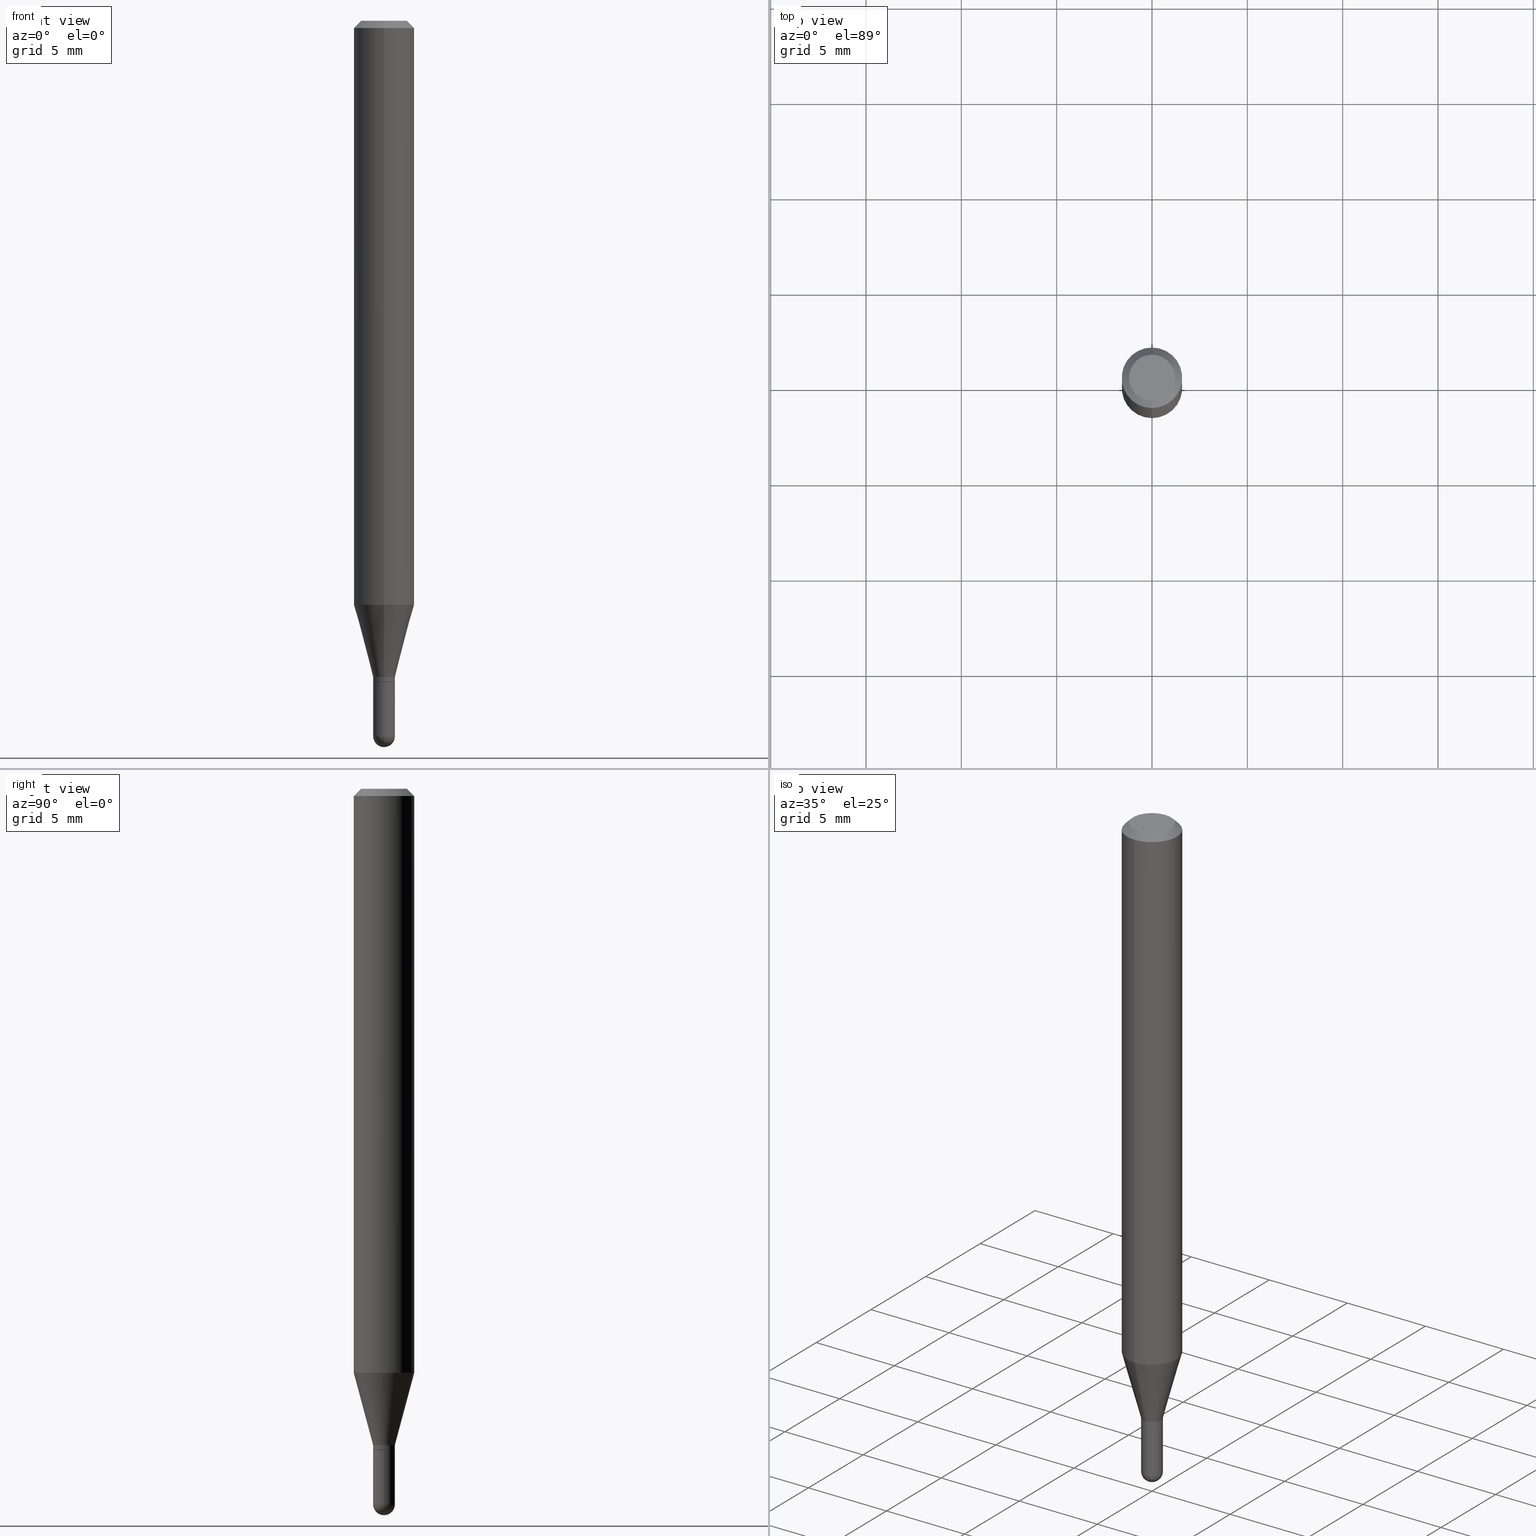
[diagram: canonical four-view strip — front | top / right | iso, engineering-drawing reading convention]
A machine part, canonical four-view strip (front | top / right | iso — engineering-drawing reading convention). The complete STEP part file that produces these views, byte-faithful:
ISO-10303-21;
HEADER;
FILE_DESCRIPTION (( 'STEP AP203' ),
    '1' );
FILE_NAME ('00922.STEP',
    '2024-03-07T18:55:36',
    ( '' ),
    ( '' ),
    'SwSTEP 2.0',
    'SolidWorks 2023',
    '' );
FILE_SCHEMA (( 'CONFIG_CONTROL_DESIGN' ));
ENDSEC;

DATA;
#1 = DATE_TIME_ROLE ( 'creation_date' ) ;
#2 = CARTESIAN_POINT ( 'NONE',  ( 0.000000000000000000, 0.000000000000000000, 0.000000000000000000 ) ) ;
#3 = CALENDAR_DATE ( 2024, 7, 3 ) ;
#4 = CARTESIAN_POINT ( 'NONE',  ( 3.338047731826425136E-29, -4.765896642597731001E-15, -1.364999999999999991 ) ) ;
#5 = AXIS2_PLACEMENT_3D ( 'NONE', #477, #445, #279 ) ;
#6 = DIRECTION ( 'NONE',  ( -6.982962677686265922E-15, -1.000000000000000000, 4.370956789862821150E-15 ) ) ;
#7 = AXIS2_PLACEMENT_3D ( 'NONE', #361, #400, #8 ) ;
#8 = DIRECTION ( 'NONE',  ( -6.982962677686265922E-15, -1.000000000000000000, 3.483106191921935554E-15 ) ) ;
#9 = ORIENTED_EDGE ( 'NONE', *, *, #252, .T. ) ;
#10 = CC_DESIGN_PERSON_AND_ORGANIZATION_ASSIGNMENT ( #150, #271, ( #250 ) ) ;
#11 = DIRECTION ( 'NONE',  ( 6.982962677686265922E-15, 1.000000000000000000, 0.000000000000000000 ) ) ;
#12 = ORIENTED_EDGE ( 'NONE', *, *, #200, .F. ) ;
#13 = CARTESIAN_POINT ( 'NONE',  ( 3.611256036987885434E-29, -5.161419133438828807E-15, -1.477500000000000036 ) ) ;
#14 = CONICAL_SURFACE ( 'NONE', #483, 0.02199999999999999872, 0.7853981633974739252 ) ;
#15 = ORIENTED_EDGE ( 'NONE', *, *, #420, .T. ) ;
#16 = AXIS2_PLACEMENT_3D ( 'NONE', #28, #421, #102 ) ;
#17 = CYLINDRICAL_SURFACE ( 'NONE', #220, 0.02249999999999999917 ) ;
#18 = EDGE_LOOP ( 'NONE', ( #12, #463, #179, #383 ) ) ;
#19 = EDGE_CURVE ( 'NONE', #147, #214, #221, .T. ) ;
#20 = FACE_OUTER_BOUND ( 'NONE', #51, .T. ) ;
#21 = PRODUCT_DEFINITION_SHAPE ( 'NONE', 'NONE',  #415 ) ;
#22 = ORIENTED_EDGE ( 'NONE', *, *, #37, .T. ) ;
#23 = CARTESIAN_POINT ( 'NONE',  ( -1.536251789090644327E-16, -0.02200000000000476574, -1.364999999999999991 ) ) ;
#24 = ORIENTED_EDGE ( 'NONE', *, *, #132, .F. ) ;
#25 = AXIS2_PLACEMENT_3D ( 'NONE', #426, #149, #227 ) ;
#26 = AXIS2_PLACEMENT_3D ( 'NONE', #404, #130, #292 ) ;
#27 = SPHERICAL_SURFACE ( 'NONE', #42, 0.02250000000000005121 ) ;
#28 = CARTESIAN_POINT ( 'NONE',  ( 3.338047731826425136E-29, -4.765896642597731001E-15, -1.364999999999999991 ) ) ;
#29 = VERTEX_POINT ( 'NONE', #438 ) ;
#30 = DIRECTION ( 'NONE',  ( -1.000000000000000000, 6.982962677686265922E-15, -4.876176775795935793E-29 ) ) ;
#31 = EDGE_LOOP ( 'NONE', ( #246, #405, #173, #243 ) ) ;
#32 = ADVANCED_FACE ( 'NONE', ( #313 ), #501, .T. ) ;
#33 = CIRCLE ( 'NONE', #126, 0.02249999999999999917 ) ;
#34 = LOCAL_TIME ( 13, 55, 36.00000000000000000, #39 ) ;
#35 = PERSON_AND_ORGANIZATION_ROLE ( 'classification_officer' ) ;
#36 = DIRECTION ( 'NONE',  ( -2.445468806185136597E-29, 3.491481338843145583E-15, 1.000000000000000000 ) ) ;
#37 = EDGE_CURVE ( 'NONE', #248, #507, #512, .T. ) ;
#38 = CARTESIAN_POINT ( 'NONE',  ( 0.000000000000000000, 0.000000000000000000, 0.000000000000000000 ) ) ;
#39 = COORDINATED_UNIVERSAL_TIME_OFFSET ( 5, 0, .BEHIND. ) ;
#40 = DIRECTION ( 'NONE',  ( 1.000000000000000000, -6.982962677686269077E-15, 0.000000000000000000 ) ) ;
#41 = CONICAL_SURFACE ( 'NONE', #331, 0.02199999999999999872, 0.7853981633974739252 ) ;
#42 = AXIS2_PLACEMENT_3D ( 'NONE', #346, #304, #458 ) ;
#43 = CYLINDRICAL_SURFACE ( 'NONE', #136, 0.06250000000000000000 ) ;
#44 = ADVANCED_FACE ( 'NONE', ( #116 ), #14, .T. ) ;
#45 = CARTESIAN_POINT ( 'NONE',  ( 0.02249999999999999917, -1.571166602479409911E-16, 1.097139774554085483E-30 ) ) ;
#46 = CARTESIAN_POINT ( 'NONE',  ( 4.440892098500625669E-16, 0.06250000000000000000, -2.182187107416543441E-16 ) ) ;
#47 = EDGE_CURVE ( 'NONE', #57, #93, #117, .T. ) ;
#48 = AXIS2_PLACEMENT_3D ( 'NONE', #38, #237, #229 ) ;
#49 = FACE_OUTER_BOUND ( 'NONE', #31, .T. ) ;
#50 = CC_DESIGN_APPROVAL ( #139, ( #415 ) ) ;
#51 = EDGE_LOOP ( 'NONE', ( #176, #141, #497, #125 ) ) ;
#52 = CC_DESIGN_PERSON_AND_ORGANIZATION_ASSIGNMENT ( #68, #108, ( #415 ) ) ;
#53 = CARTESIAN_POINT ( 'NONE',  ( 3.338064920442711836E-29, -4.765872027520893280E-15, -1.364999999999999991 ) ) ;
#54 = VERTEX_POINT ( 'NONE', #355 ) ;
#55 = EDGE_CURVE ( 'NONE', #57, #208, #267, .T. ) ;
#56 = CARTESIAN_POINT ( 'NONE',  ( 2.166542890100385746E-46, -3.093280958065800308E-32, -8.859463023223195379E-18 ) ) ;
#57 = VERTEX_POINT ( 'NONE', #154 ) ;
#58 = DIRECTION ( 'NONE',  ( -6.982962677686265133E-15, -1.000000000000000000, 0.000000000000000000 ) ) ;
#59 = ORIENTED_EDGE ( 'NONE', *, *, #19, .T. ) ;
#60 = AXIS2_PLACEMENT_3D ( 'NONE', #211, #282, #207 ) ;
#61 = CARTESIAN_POINT ( 'NONE',  ( -1.571166602479072427E-16, -0.02250000000000464823, -1.355000000000000204 ) ) ;
#62 = DIRECTION ( 'NONE',  ( 6.982962677686265922E-15, 1.000000000000000000, -3.491499371866469505E-15 ) ) ;
#63 = DIRECTION ( 'NONE',  ( -2.445456213792252412E-29, 3.491499371866469505E-15, 1.000000000000000000 ) ) ;
#64 = APPROVAL_PERSON_ORGANIZATION ( #198, #139, #425 ) ;
#65 = CARTESIAN_POINT ( 'NONE',  ( 1.571166602479743698E-16, 0.02249999999999523215, -1.364999999999999991 ) ) ;
#66 = DIMENSIONAL_EXPONENTS ( 1.000000000000000000, 0.000000000000000000, 0.000000000000000000, 0.000000000000000000, 0.000000000000000000, 0.000000000000000000, 0.000000000000000000 ) ;
#67 = LINE ( 'NONE', #215, #127 ) ;
#68 = PERSON_AND_ORGANIZATION ( #99, #204 ) ;
#69 = ADVANCED_FACE ( 'NONE', ( #78 ), #360, .T. ) ;
#70 = ORIENTED_EDGE ( 'NONE', *, *, #283, .T. ) ;
#71 = CIRCLE ( 'NONE', #285, 0.02249999999999999917 ) ;
#72 = CC_DESIGN_SECURITY_CLASSIFICATION ( #161, ( #250 ) ) ;
#73 = DIRECTION ( 'NONE',  ( -2.445456213792252692E-29, 3.491499371866469900E-15, 1.000000000000000000 ) ) ;
#74 = ORIENTED_EDGE ( 'NONE', *, *, #228, .F. ) ;
#75 = APPROVAL_STATUS ( 'not_yet_approved' ) ;
#76 = DIRECTION ( 'NONE',  ( 2.445456213792252692E-29, -3.491499371866469900E-15, -1.000000000000000000 ) ) ;
#77 =( NAMED_UNIT ( * ) SI_UNIT ( $, .STERADIAN. ) SOLID_ANGLE_UNIT ( ) );
#78 = FACE_OUTER_BOUND ( 'NONE', #240, .T. ) ;
#79 = CIRCLE ( 'NONE', #5, 0.02249999999999992284 ) ;
#80 = ADVANCED_FACE ( 'NONE', ( #236 ), #354, .T. ) ;
#81 = APPROVAL_PERSON_ORGANIZATION ( #351, #190, #153 ) ;
#82 = DIRECTION ( 'NONE',  ( -6.982962677686265922E-15, -1.000000000000000000, 0.000000000000000000 ) ) ;
#83 = CYLINDRICAL_SURFACE ( 'NONE', #465, 0.06250000000000000000 ) ;
#84 = ORIENTED_EDGE ( 'NONE', *, *, #19, .F. ) ;
#85 = DIRECTION ( 'NONE',  ( -2.445456213792252692E-29, 3.491499371866469900E-15, 1.000000000000000000 ) ) ;
#86 = ADVANCED_FACE ( 'NONE', ( #272 ), #371, .T. ) ;
#87 = VERTEX_POINT ( 'NONE', #310 ) ;
#88 = CARTESIAN_POINT ( 'NONE',  ( 3.313593169688502926E-29, -4.730981648879067221E-15, -1.355000000000000204 ) ) ;
#89 = EDGE_LOOP ( 'NONE', ( #166, #347, #275, #134 ) ) ;
#90 = FACE_OUTER_BOUND ( 'NONE', #428, .T. ) ;
#91 = ORIENTED_EDGE ( 'NONE', *, *, #307, .T. ) ;
#92 = DIRECTION ( 'NONE',  ( 1.000000000000000000, -6.982962677686269077E-15, 0.000000000000000000 ) ) ;
#93 = VERTEX_POINT ( 'NONE', #109 ) ;
#94 = DIRECTION ( 'NONE',  ( -2.445468806185136877E-29, 3.491481338843145188E-15, 1.000000000000000000 ) ) ;
#95 = AXIS2_PLACEMENT_3D ( 'NONE', #350, #429, #358 ) ;
#96 = VERTEX_POINT ( 'NONE', #199 ) ;
#97 = AXIS2_PLACEMENT_3D ( 'NONE', #447, #245, #406 ) ;
#98 = LINE ( 'NONE', #261, #234 ) ;
#99 = PERSON ( 'UNSPECIFIED', 'UNSPECIFIED', 'UNSPECIFIED', ('UNSPECIFIED'), ('UNSPECIFIED'), ('UNSPECIFIED') ) ;
#100 = DIRECTION ( 'NONE',  ( -2.445468806185136597E-29, 3.491481338843145583E-15, 1.000000000000000000 ) ) ;
#101 = CC_DESIGN_PERSON_AND_ORGANIZATION_ASSIGNMENT ( #224, #112, ( #250 ) ) ;
#102 = DIRECTION ( 'NONE',  ( -6.982962677686265922E-15, -1.000000000000000000, 3.491499371866469505E-15 ) ) ;
#103 = AXIS2_PLACEMENT_3D ( 'NONE', #88, #289, #58 ) ;
#104 = EDGE_CURVE ( 'NONE', #507, #450, #257, .T. ) ;
#105 = CARTESIAN_POINT ( 'NONE',  ( 3.613180161138538918E-29, -5.158663678140747361E-15, -1.477500000000000036 ) ) ;
#106 = EDGE_CURVE ( 'NONE', #147, #208, #71, .T. ) ;
#107 = ORIENTED_EDGE ( 'NONE', *, *, #427, .T. ) ;
#108 = PERSON_AND_ORGANIZATION_ROLE ( 'creator' ) ;
#109 = CARTESIAN_POINT ( 'NONE',  ( -1.598721155459865688E-16, -0.02250000000000518599, -1.477500000000000036 ) ) ;
#110 = AXIS2_PLACEMENT_3D ( 'NONE', #180, #416, #62 ) ;
#111 = CARTESIAN_POINT ( 'NONE',  ( 4.364351673553919652E-16, 0.06249999999999995143, -0.01500000000000022669 ) ) ;
#112 = PERSON_AND_ORGANIZATION_ROLE ( 'creator' ) ;
#113 = DIRECTION ( 'NONE',  ( -2.445456213792252692E-29, 3.491499371866469900E-15, 1.000000000000000000 ) ) ;
#114 = ADVANCED_FACE ( 'NONE', ( #232 ), #83, .T. ) ;
#115 = DATE_TIME_ROLE ( 'classification_date' ) ;
#116 = FACE_OUTER_BOUND ( 'NONE', #455, .T. ) ;
#117 = CIRCLE ( 'NONE', #212, 0.02250000000000005121 ) ;
#118 = EDGE_CURVE ( 'NONE', #208, #29, #33, .T. ) ;
#119 = AXIS2_PLACEMENT_3D ( 'NONE', #13, #242, #11 ) ;
#120 = CARTESIAN_POINT ( 'NONE',  ( 3.313593169688502926E-29, -4.730981648879067221E-15, -1.355000000000000204 ) ) ;
#121 = ADVANCED_FACE ( 'NONE', ( #187 ), #43, .T. ) ;
#122 = DIRECTION ( 'NONE',  ( -6.982962677686265922E-15, -1.000000000000000000, 0.000000000000000000 ) ) ;
#123 = ORIENTED_EDGE ( 'NONE', *, *, #303, .T. ) ;
#124 = DIRECTION ( 'NONE',  ( -2.445456213792252692E-29, 3.491499371866469900E-15, 1.000000000000000000 ) ) ;
#125 = ORIENTED_EDGE ( 'NONE', *, *, #319, .F. ) ;
#126 = AXIS2_PLACEMENT_3D ( 'NONE', #391, #394, #40 ) ;
#127 = VECTOR ( 'NONE', #181, 39.37007874015748143 ) ;
#128 = DIRECTION ( 'NONE',  ( -2.445456213792252692E-29, 3.491499371866469900E-15, 1.000000000000000000 ) ) ;
#129 = EDGE_LOOP ( 'NONE', ( #123, #374, #263, #301 ) ) ;
#130 = DIRECTION ( 'NONE',  ( -2.445456213792252692E-29, 3.491499371866469900E-15, 1.000000000000000000 ) ) ;
#131 = EDGE_LOOP ( 'NONE', ( #485, #70 ) ) ;
#132 = EDGE_CURVE ( 'NONE', #376, #214, #241, .T. ) ;
#133 = CARTESIAN_POINT ( 'NONE',  ( 1.571166602479772787E-16, 0.02249999999999486439, -1.477500000000000036 ) ) ;
#134 = ORIENTED_EDGE ( 'NONE', *, *, #37, .F. ) ;
#135 = DIRECTION ( 'NONE',  ( -6.982962677686265922E-15, -1.000000000000000000, 0.000000000000000000 ) ) ;
#136 = AXIS2_PLACEMENT_3D ( 'NONE', #2, #504, #318 ) ;
#137 = CIRCLE ( 'NONE', #486, 0.02249999999999999917 ) ;
#138 = CARTESIAN_POINT ( 'NONE',  ( 3.338047731826425136E-29, -4.765896642597731001E-15, -1.364999999999999991 ) ) ;
#139 = APPROVAL ( #359, 'UNSPECIFIED' ) ;
#140 = CARTESIAN_POINT ( 'NONE',  ( -0.02249999999999999917, -4.802395737284797637E-15, -1.364999999999999991 ) ) ;
#141 = ORIENTED_EDGE ( 'NONE', *, *, #55, .T. ) ;
#142 = DIRECTION ( 'NONE',  ( -6.982962677686265922E-15, -1.000000000000000000, 0.000000000000000000 ) ) ;
#143 = AXIS2_PLACEMENT_3D ( 'NONE', #158, #162, #247 ) ;
#144 = CIRCLE ( 'NONE', #26, 0.02249999999999992284 ) ;
#145 = PRODUCT_RELATED_PRODUCT_CATEGORY ( 'detail', '', ( #298 ) ) ;
#146 = CARTESIAN_POINT ( 'NONE',  ( 1.598721155460219689E-16, 0.02249999999999992284, -7.855873586699530453E-17 ) ) ;
#147 = VERTEX_POINT ( 'NONE', #196 ) ;
#148 = PERSON_AND_ORGANIZATION_ROLE ( 'design_owner' ) ;
#149 = DIRECTION ( 'NONE',  ( -2.445468806185136597E-29, 3.491481338843145583E-15, 1.000000000000000000 ) ) ;
#150 = PERSON_AND_ORGANIZATION ( #99, #204 ) ;
#151 = DIRECTION ( 'NONE',  ( -6.982962677686265133E-15, -1.000000000000000000, 0.000000000000000000 ) ) ;
#152 = CIRCLE ( 'NONE', #167, 0.04749999999999999362 ) ;
#153 = APPROVAL_ROLE ( '' ) ;
#154 = CARTESIAN_POINT ( 'NONE',  ( 3.667241147202378433E-29, -5.238599735913759294E-15, -1.500000000000000222 ) ) ;
#155 = APPLICATION_PROTOCOL_DEFINITION ( 'international standard', 'config_control_design', 1994, #299 ) ;
#156 = CARTESIAN_POINT ( 'NONE',  ( 0.000000000000000000, 0.000000000000000000, 0.000000000000000000 ) ) ;
#157 = DATE_AND_TIME ( #191, #356 ) ;
#158 = CARTESIAN_POINT ( 'NONE',  ( 0.000000000000000000, 0.000000000000000000, 0.000000000000000000 ) ) ;
#159 = ORIENTED_EDGE ( 'NONE', *, *, #396, .T. ) ;
#160 = ADVANCED_FACE ( 'NONE', ( #506 ), #474, .T. ) ;
#161 = SECURITY_CLASSIFICATION ( '', '', #386 ) ;
#162 = DIRECTION ( 'NONE',  ( -2.445456213792252692E-29, 3.491499371866469900E-15, 1.000000000000000000 ) ) ;
#163 = CARTESIAN_POINT ( 'NONE',  ( 2.166542890100385746E-46, -3.093280958065800308E-32, -8.859463023223195379E-18 ) ) ;
#164 = ORIENTED_EDGE ( 'NONE', *, *, #453, .F. ) ;
#165 = DIRECTION ( 'NONE',  ( -6.982962677686266711E-15, -1.000000000000000000, 3.491499371866470294E-15 ) ) ;
#166 = ORIENTED_EDGE ( 'NONE', *, *, #283, .F. ) ;
#167 = AXIS2_PLACEMENT_3D ( 'NONE', #163, #85, #480 ) ;
#168 = CIRCLE ( 'NONE', #510, 0.02199999999999999872 ) ;
#169 = CARTESIAN_POINT ( 'NONE',  ( 3.313593169688502926E-29, -4.730981648879067221E-15, -1.355000000000000204 ) ) ;
#170 = EDGE_LOOP ( 'NONE', ( #281, #446 ) ) ;
#171 = MANIFOLD_SOLID_BREP ( 'Body-Move/Copy2[1]', #464 ) ;
#172 = LINE ( 'NONE', #46, #312 ) ;
#173 = ORIENTED_EDGE ( 'NONE', *, *, #420, .F. ) ;
#174 = MANIFOLD_SOLID_BREP ( 'Body-Move/Copy2[2]', #393 ) ;
#175 = LINE ( 'NONE', #183, #379 ) ;
#176 = ORIENTED_EDGE ( 'NONE', *, *, #47, .F. ) ;
#177 = EDGE_CURVE ( 'NONE', #214, #376, #322, .T. ) ;
#178 = DIRECTION ( 'NONE',  ( -2.445456213792252692E-29, 3.491499371866469900E-15, 1.000000000000000000 ) ) ;
#179 = ORIENTED_EDGE ( 'NONE', *, *, #348, .T. ) ;
#180 = CARTESIAN_POINT ( 'NONE',  ( 3.316907271900976096E-16, 0.04749999999999999362, -1.702759516752688913E-16 ) ) ;
#181 = DIRECTION ( 'NONE',  ( 1.839019923739599921E-15, 0.2588190451025249028, 0.9659258262890670910 ) ) ;
#182 = EDGE_LOOP ( 'NONE', ( #424, #253 ) ) ;
#183 = CARTESIAN_POINT ( 'NONE',  ( -1.571166602479072427E-16, -0.02250000000000464823, -1.355000000000000204 ) ) ;
#184 = ADVANCED_FACE ( 'NONE', ( #373 ), #41, .T. ) ;
#185 = AXIS2_PLACEMENT_3D ( 'NONE', #138, #302, #142 ) ;
#186 = COORDINATED_UNIVERSAL_TIME_OFFSET ( 5, 0, .BEHIND. ) ;
#187 = FACE_OUTER_BOUND ( 'NONE', #18, .T. ) ;
#188 = CARTESIAN_POINT ( 'NONE',  ( 0.000000000000000000, 0.000000000000000000, 0.000000000000000000 ) ) ;
#189 = DIRECTION ( 'NONE',  ( -1.000000000000000000, 7.105427357601001070E-15, -4.926315508542082329E-29 ) ) ;
#190 = APPROVAL ( #75, 'UNSPECIFIED' ) ;
#191 = CALENDAR_DATE ( 2024, 7, 3 ) ;
#192 = CARTESIAN_POINT ( 'NONE',  ( 3.611256036987885434E-29, -5.161419133438828807E-15, -1.477500000000000036 ) ) ;
#193 = CIRCLE ( 'NONE', #233, 0.02249999999999991937 ) ;
#194 = AXIS2_PLACEMENT_3D ( 'NONE', #65, #456, #30 ) ;
#195 = COORDINATED_UNIVERSAL_TIME_OFFSET ( 5, 0, .BEHIND. ) ;
#196 = CARTESIAN_POINT ( 'NONE',  ( 0.02249999999999999917, -5.119384513078760769E-15, -1.477500000000000036 ) ) ;
#197 = EDGE_CURVE ( 'NONE', #87, #278, #451, .T. ) ;
#198 = PERSON_AND_ORGANIZATION ( #99, #204 ) ;
#199 = CARTESIAN_POINT ( 'NONE',  ( -1.536251789090644327E-16, -0.02200000000000476574, -1.364999999999999991 ) ) ;
#200 = EDGE_CURVE ( 'NONE', #87, #507, #172, .T. ) ;
#201 = APPROVAL_STATUS ( 'not_yet_approved' ) ;
#202 = CARTESIAN_POINT ( 'NONE',  ( -0.02249999999999999917, 1.598721155460225359E-16, -1.106760395307353780E-30 ) ) ;
#203 = CIRCLE ( 'NONE', #103, 0.02249999999999991937 ) ;
#204 = ORGANIZATION ( 'UNSPECIFIED', 'UNSPECIFIED', '' ) ;
#205 = CARTESIAN_POINT ( 'NONE',  ( 3.840629472727447874E-16, 0.04749999999999999362, -1.747056831868805136E-16 ) ) ;
#206 = ORIENTED_EDGE ( 'NONE', *, *, #217, .T. ) ;
#207 = DIRECTION ( 'NONE',  ( 6.982962677686265922E-15, 1.000000000000000000, -3.483106191921935554E-15 ) ) ;
#208 = VERTEX_POINT ( 'NONE', #133 ) ;
#209 = DESIGN_CONTEXT ( 'detailed design', #492, 'design' ) ;
#210 = EDGE_CURVE ( 'NONE', #336, #306, #79, .T. ) ;
#211 = CARTESIAN_POINT ( 'NONE',  ( 3.668184320688381455E-31, -5.237249057799708128E-17, -0.01500000000000000812 ) ) ;
#212 = AXIS2_PLACEMENT_3D ( 'NONE', #192, #189, #432 ) ;
#213 = FACE_OUTER_BOUND ( 'NONE', #448, .T. ) ;
#214 = VERTEX_POINT ( 'NONE', #294 ) ;
#215 = CARTESIAN_POINT ( 'NONE',  ( 1.598721155460550764E-16, 0.02249999999999518704, -1.355000000000000204 ) ) ;
#216 = ORIENTED_EDGE ( 'NONE', *, *, #210, .F. ) ;
#217 = EDGE_CURVE ( 'NONE', #54, #460, #203, .T. ) ;
#218 = LINE ( 'NONE', #384, #296 ) ;
#219 = CARTESIAN_POINT ( 'NONE',  ( -1.571166602479076124E-16, -0.02250000000000476619, -1.364500000000000046 ) ) ;
#220 = AXIS2_PLACEMENT_3D ( 'NONE', #454, #100, #223 ) ;
#221 = LINE ( 'NONE', #45, #494 ) ;
#222 = CARTESIAN_POINT ( 'NONE',  ( 3.338047731826425136E-29, -4.765896642597731001E-15, -1.364999999999999991 ) ) ;
#223 = DIRECTION ( 'NONE',  ( 1.000000000000000000, -6.982962677686266711E-15, 4.876176775795935793E-29 ) ) ;
#224 = PERSON_AND_ORGANIZATION ( #99, #204 ) ;
#225 = AXIS2_PLACEMENT_3D ( 'NONE', #324, #489, #335 ) ;
#226 = LOCAL_TIME ( 13, 55, 36.00000000000000000, #325 ) ;
#227 = DIRECTION ( 'NONE',  ( 1.000000000000000000, -6.982962677686269077E-15, 0.000000000000000000 ) ) ;
#228 = EDGE_CURVE ( 'NONE', #248, #481, #152, .T. ) ;
#229 = DIRECTION ( 'NONE',  ( 1.000000000000000000, -6.982962677686266711E-15, 4.876176775795935793E-29 ) ) ;
#230 = EDGE_LOOP ( 'NONE', ( #107, #330, #216, #269 ) ) ;
#231 =( LENGTH_UNIT ( ) NAMED_UNIT ( * ) SI_UNIT ( $, .METRE. ) );
#232 = FACE_OUTER_BOUND ( 'NONE', #129, .T. ) ;
#233 = AXIS2_PLACEMENT_3D ( 'NONE', #169, #128, #439 ) ;
#234 = VECTOR ( 'NONE', #308, 39.37007874015748143 ) ;
#235 =( NAMED_UNIT ( * ) PLANE_ANGLE_UNIT ( ) SI_UNIT ( $, .RADIAN. ) );
#236 = FACE_OUTER_BOUND ( 'NONE', #436, .T. ) ;
#237 = DIRECTION ( 'NONE',  ( -2.445468806185136597E-29, 3.491481338843145583E-15, 1.000000000000000000 ) ) ;
#238 = ORIENTED_EDGE ( 'NONE', *, *, #326, .F. ) ;
#239 = FACE_OUTER_BOUND ( 'NONE', #343, .T. ) ;
#240 = EDGE_LOOP ( 'NONE', ( #334, #15, #401, #59, #24 ) ) ;
#241 = CIRCLE ( 'NONE', #25, 0.02249999999999999917 ) ;
#242 = DIRECTION ( 'NONE',  ( -1.000000000000000000, 6.982962677686265922E-15, -4.883557194083111780E-29 ) ) ;
#243 = ORIENTED_EDGE ( 'NONE', *, *, #118, .F. ) ;
#244 = APPROVAL ( #201, 'UNSPECIFIED' ) ;
#245 = DIRECTION ( 'NONE',  ( -2.445456213792252692E-29, 3.491499371866469900E-15, 1.000000000000000000 ) ) ;
#246 = ORIENTED_EDGE ( 'NONE', *, *, #55, .F. ) ;
#247 = DIRECTION ( 'NONE',  ( -6.982962677686265133E-15, -1.000000000000000000, 3.491499371866469900E-15 ) ) ;
#248 = VERTEX_POINT ( 'NONE', #205 ) ;
#249 = AXIS2_PLACEMENT_3D ( 'NONE', #462, #76, #389 ) ;
#250 = PRODUCT_DEFINITION_FORMATION_WITH_SPECIFIED_SOURCE ( 'ANY', '', #298, .NOT_KNOWN. ) ;
#251 = CARTESIAN_POINT ( 'NONE',  ( -1.571166602479404241E-16, -0.02249999999999992284, 7.855873586699530453E-17 ) ) ;
#252 = EDGE_CURVE ( 'NONE', #460, #54, #193, .T. ) ;
#253 = ORIENTED_EDGE ( 'NONE', *, *, #385, .F. ) ;
#254 = DIRECTION ( 'NONE',  ( -1.807323732225329745E-15, -0.2588190451025181305, 0.9659258262890689783 ) ) ;
#255 = DIRECTION ( 'NONE',  ( -2.445456213792252412E-29, 3.491499371866469505E-15, 1.000000000000000000 ) ) ;
#256 = ORIENTED_EDGE ( 'NONE', *, *, #385, .T. ) ;
#257 = CIRCLE ( 'NONE', #509, 0.06250000000000000000 ) ;
#258 = PLANE ( 'NONE',  #194 ) ;
#259 = AXIS2_PLACEMENT_3D ( 'NONE', #56, #367, #165 ) ;
#260 = ADVANCED_FACE ( 'NONE', ( #239 ), #286, .T. ) ;
#261 = CARTESIAN_POINT ( 'NONE',  ( 1.563194018672553858E-16, 0.02199999999999522823, -1.364999999999999991 ) ) ;
#262 = MECHANICAL_CONTEXT ( 'NONE', #299, 'mechanical' ) ;
#263 = ORIENTED_EDGE ( 'NONE', *, *, #291, .F. ) ;
#264 =( CONVERSION_BASED_UNIT ( 'INCH', #503 ) LENGTH_UNIT ( ) NAMED_UNIT ( #66 ) );
#265 = EDGE_CURVE ( 'NONE', #29, #376, #449, .T. ) ;
#266 = DIRECTION ( 'NONE',  ( -6.982962677686265922E-15, -1.000000000000000000, 3.491499371866469505E-15 ) ) ;
#267 = CIRCLE ( 'NONE', #95, 0.02250000000000005121 ) ;
#268 = VECTOR ( 'NONE', #390, 39.37007874015748143 ) ;
#269 = ORIENTED_EDGE ( 'NONE', *, *, #382, .F. ) ;
#270 = DIRECTION ( 'NONE',  ( 4.937700262164548042E-15, 0.7071067811865451302, -0.7071067811865499042 ) ) ;
#271 = PERSON_AND_ORGANIZATION_ROLE ( 'design_supplier' ) ;
#272 = FACE_OUTER_BOUND ( 'NONE', #89, .T. ) ;
#273 = CARTESIAN_POINT ( 'NONE',  ( 4.440892098500922971E-16, 0.06249999999999995143, -0.01500000000000022669 ) ) ;
#274 = DIRECTION ( 'NONE',  ( -2.445456213792252692E-29, 3.491499371866469900E-15, 1.000000000000000000 ) ) ;
#275 = ORIENTED_EDGE ( 'NONE', *, *, #291, .T. ) ;
#276 =( GEOMETRIC_REPRESENTATION_CONTEXT ( 3 ) GLOBAL_UNCERTAINTY_ASSIGNED_CONTEXT ( ( #287 ) ) GLOBAL_UNIT_ASSIGNED_CONTEXT ( ( #264, #235, #77 ) ) REPRESENTATION_CONTEXT ( 'NONE', 'WORKASPACE' ) );
#277 = CARTESIAN_POINT ( 'NONE',  ( 3.313593169688502926E-29, -4.730981648879067221E-15, -1.355000000000000204 ) ) ;
#278 = VERTEX_POINT ( 'NONE', #327 ) ;
#279 = DIRECTION ( 'NONE',  ( -6.982962677686265133E-15, -1.000000000000000000, 0.000000000000000000 ) ) ;
#280 = ADVANCED_FACE ( 'NONE', ( #90 ), #329, .T. ) ;
#281 = ORIENTED_EDGE ( 'NONE', *, *, #177, .T. ) ;
#282 = DIRECTION ( 'NONE',  ( 2.445456213792252692E-29, -3.491499371866469900E-15, -1.000000000000000000 ) ) ;
#283 = EDGE_CURVE ( 'NONE', #481, #248, #444, .T. ) ;
#284 = ORIENTED_EDGE ( 'NONE', *, *, #484, .T. ) ;
#285 = AXIS2_PLACEMENT_3D ( 'NONE', #471, #36, #475 ) ;
#286 = CONICAL_SURFACE ( 'NONE', #60, 0.06250000000000000000, 0.7853981633974483900 ) ;
#287 = UNCERTAINTY_MEASURE_WITH_UNIT (LENGTH_MEASURE( 1.000000000000000082E-05 ), #264, 'distance_accuracy_value', 'NONE');
#288 = APPROVAL_ROLE ( '' ) ;
#289 = DIRECTION ( 'NONE',  ( -2.445456213792252692E-29, 3.491499371866469900E-15, 1.000000000000000000 ) ) ;
#290 = EDGE_LOOP ( 'NONE', ( #365, #206, #159, #407 ) ) ;
#291 = EDGE_CURVE ( 'NONE', #450, #507, #305, .T. ) ;
#292 = DIRECTION ( 'NONE',  ( -6.982962677686265133E-15, -1.000000000000000000, 0.000000000000000000 ) ) ;
#293 = ADVANCED_FACE ( 'NONE', ( #49 ), #369, .T. ) ;
#294 = CARTESIAN_POINT ( 'NONE',  ( 0.02249999999999999917, -4.922988687768834913E-15, -1.364999999999999991 ) ) ;
#295 = ORIENTED_EDGE ( 'NONE', *, *, #399, .T. ) ;
#296 = VECTOR ( 'NONE', #63, 39.37007874015748143 ) ;
#297 = CARTESIAN_POINT ( 'NONE',  ( 3.613180161138538918E-29, -5.158663678140747361E-15, -1.477500000000000036 ) ) ;
#298 = PRODUCT ( '00922', '00922', '', ( #262 ) ) ;
#299 = APPLICATION_CONTEXT ( 'configuration controlled 3d designs of mechanical parts and assemblies' ) ;
#300 = FACE_OUTER_BOUND ( 'NONE', #182, .T. ) ;
#301 = ORIENTED_EDGE ( 'NONE', *, *, #348, .F. ) ;
#302 = DIRECTION ( 'NONE',  ( -2.445456213792252692E-29, 3.491499371866469900E-15, 1.000000000000000000 ) ) ;
#303 = EDGE_CURVE ( 'NONE', #278, #87, #363, .T. ) ;
#304 = DIRECTION ( 'NONE',  ( -1.000000000000000000, 6.982962677686265922E-15, -4.883557194083111780E-29 ) ) ;
#305 = CIRCLE ( 'NONE', #7, 0.06250000000000000000 ) ;
#306 = VERTEX_POINT ( 'NONE', #487 ) ;
#307 = EDGE_CURVE ( 'NONE', #306, #336, #144, .T. ) ;
#308 = DIRECTION ( 'NONE',  ( 5.024295867788190974E-15, 0.7071067811865681119, 0.7071067811865270336 ) ) ;
#309 = ADVANCED_FACE ( 'NONE', ( #213 ), #17, .T. ) ;
#310 = CARTESIAN_POINT ( 'NONE',  ( 4.440892098500918040E-16, 0.06249999999999577421, -1.205717967697245596 ) ) ;
#311 = CALENDAR_DATE ( 2024, 7, 3 ) ;
#312 = VECTOR ( 'NONE', #398, 39.37007874015748143 ) ;
#313 = FACE_OUTER_BOUND ( 'NONE', #290, .T. ) ;
#314 = AXIS2_PLACEMENT_3D ( 'NONE', #297, #496, #419 ) ;
#315 = ORIENTED_EDGE ( 'NONE', *, *, #491, .F. ) ;
#316 = DIRECTION ( 'NONE',  ( 1.000000000000000000, 0.000000000000000000, 0.000000000000000000 ) ) ;
#317 = DIRECTION ( 'NONE',  ( -2.445456213792252692E-29, 3.491499371866469900E-15, 1.000000000000000000 ) ) ;
#318 = DIRECTION ( 'NONE',  ( -6.982962677686265922E-15, -1.000000000000000000, 3.491499371866469505E-15 ) ) ;
#319 = EDGE_CURVE ( 'NONE', #93, #147, #137, .T. ) ;
#320 = CARTESIAN_POINT ( 'NONE',  ( 3.668184320688381455E-31, -5.237249057799708128E-17, -0.01500000000000000812 ) ) ;
#321 = ORIENTED_EDGE ( 'NONE', *, *, #252, .F. ) ;
#322 = CIRCLE ( 'NONE', #417, 0.02249999999999999917 ) ;
#323 = CC_DESIGN_APPROVAL ( #190, ( #250 ) ) ;
#324 = CARTESIAN_POINT ( 'NONE',  ( 2.948530496186194822E-29, -4.209763526863048217E-15, -1.205717967697245152 ) ) ;
#325 = COORDINATED_UNIVERSAL_TIME_OFFSET ( 5, 0, .BEHIND. ) ;
#326 = EDGE_CURVE ( 'NONE', #336, #460, #377, .T. ) ;
#327 = CARTESIAN_POINT ( 'NONE',  ( -4.364351673553622350E-16, -0.06250000000000421885, -1.205717967697244930 ) ) ;
#328 = ORIENTED_EDGE ( 'NONE', *, *, #210, .T. ) ;
#329 = CYLINDRICAL_SURFACE ( 'NONE', #97, 0.02249999999999992284 ) ;
#330 = ORIENTED_EDGE ( 'NONE', *, *, #453, .T. ) ;
#331 = AXIS2_PLACEMENT_3D ( 'NONE', #482, #442, #122 ) ;
#332 = AXIS2_PLACEMENT_3D ( 'NONE', #333, #124, #6 ) ;
#333 = CARTESIAN_POINT ( 'NONE',  ( 2.948530496186194822E-29, -4.209763526863048217E-15, -1.205717967697245152 ) ) ;
#334 = ORIENTED_EDGE ( 'NONE', *, *, #265, .F. ) ;
#335 = DIRECTION ( 'NONE',  ( -6.982962677686265922E-15, -1.000000000000000000, 4.370956789862821150E-15 ) ) ;
#336 = VERTEX_POINT ( 'NONE', #219 ) ;
#337 = PLANE ( 'NONE',  #110 ) ;
#338 = AXIS2_PLACEMENT_3D ( 'NONE', #277, #352, #434 ) ;
#339 = APPROVAL_PERSON_ORGANIZATION ( #403, #244, #288 ) ;
#340 = DIRECTION ( 'NONE',  ( -2.445468806185136597E-29, 3.491481338843145583E-15, 1.000000000000000000 ) ) ;
#341 = DIRECTION ( 'NONE',  ( -2.445456213792252412E-29, 3.491499371866469505E-15, 1.000000000000000000 ) ) ;
#342 = CC_DESIGN_DATE_AND_TIME_ASSIGNMENT ( #357, #115, ( #161 ) ) ;
#343 = EDGE_LOOP ( 'NONE', ( #315, #74, #22, #422 ) ) ;
#344 = LINE ( 'NONE', #466, #268 ) ;
#345 = VECTOR ( 'NONE', #270, 39.37007874015748143 ) ;
#346 = CARTESIAN_POINT ( 'NONE',  ( 3.611256036987885434E-29, -5.161419133438828807E-15, -1.477500000000000036 ) ) ;
#347 = ORIENTED_EDGE ( 'NONE', *, *, #491, .T. ) ;
#348 = EDGE_CURVE ( 'NONE', #278, #450, #218, .T. ) ;
#349 = DIRECTION ( 'NONE',  ( 0.000000000000000000, 0.000000000000000000, 1.000000000000000000 ) ) ;
#350 = CARTESIAN_POINT ( 'NONE',  ( 3.611256036987885434E-29, -5.161419133438828807E-15, -1.477500000000000036 ) ) ;
#351 = PERSON_AND_ORGANIZATION ( #99, #204 ) ;
#352 = DIRECTION ( 'NONE',  ( -2.445456213792252692E-29, 3.491499371866469900E-15, 1.000000000000000000 ) ) ;
#353 = ORIENTED_EDGE ( 'NONE', *, *, #307, .F. ) ;
#354 = CONICAL_SURFACE ( 'NONE', #338, 0.02249999999999991937, 0.2617993877991502405 ) ;
#355 = CARTESIAN_POINT ( 'NONE',  ( 3.019806626980737607E-16, 0.02249999999999519398, -1.355000000000000204 ) ) ;
#356 = LOCAL_TIME ( 13, 55, 36.00000000000000000, #388 ) ;
#357 = DATE_AND_TIME ( #311, #452 ) ;
#358 = DIRECTION ( 'NONE',  ( 6.982962677686265922E-15, 1.000000000000000000, 0.000000000000000000 ) ) ;
#359 = APPROVAL_STATUS ( 'not_yet_approved' ) ;
#360 = CYLINDRICAL_SURFACE ( 'NONE', #48, 0.02249999999999999917 ) ;
#361 = CARTESIAN_POINT ( 'NONE',  ( 3.668184320688381455E-31, -5.237249057799708128E-17, -0.01500000000000000812 ) ) ;
#362 = AXIS2_PLACEMENT_3D ( 'NONE', #120, #73, #151 ) ;
#363 = CIRCLE ( 'NONE', #332, 0.06250000000000000000 ) ;
#364 = ADVANCED_FACE ( 'NONE', ( #375 ), #258, .F. ) ;
#365 = ORIENTED_EDGE ( 'NONE', *, *, #484, .F. ) ;
#366 = DATE_AND_TIME ( #441, #226 ) ;
#367 = DIRECTION ( 'NONE',  ( -2.445456213792252692E-29, 3.491499371866469900E-15, 1.000000000000000000 ) ) ;
#368 = ORIENTED_EDGE ( 'NONE', *, *, #265, .T. ) ;
#369 = SPHERICAL_SURFACE ( 'NONE', #119, 0.02250000000000005121 ) ;
#370 = ORIENTED_EDGE ( 'NONE', *, *, #399, .F. ) ;
#371 = CONICAL_SURFACE ( 'NONE', #249, 0.06250000000000000000, 0.7853981633974483900 ) ;
#372 = AXIS2_PLACEMENT_3D ( 'NONE', #188, #349, #316 ) ;
#373 = FACE_OUTER_BOUND ( 'NONE', #230, .T. ) ;
#374 = ORIENTED_EDGE ( 'NONE', *, *, #200, .T. ) ;
#375 = FACE_OUTER_BOUND ( 'NONE', #170, .T. ) ;
#376 = VERTEX_POINT ( 'NONE', #140 ) ;
#377 = LINE ( 'NONE', #251, #402 ) ;
#378 = CC_DESIGN_DATE_AND_TIME_ASSIGNMENT ( #157, #1, ( #415 ) ) ;
#379 = VECTOR ( 'NONE', #254, 39.37007874015748143 ) ;
#380 = PLANE ( 'NONE',  #16 ) ;
#381 = CARTESIAN_POINT ( 'NONE',  ( -4.364351673553912750E-16, -0.06250000000000005551, -0.01499999999999979128 ) ) ;
#382 = EDGE_CURVE ( 'NONE', #96, #336, #498, .T. ) ;
#383 = ORIENTED_EDGE ( 'NONE', *, *, #104, .F. ) ;
#384 = CARTESIAN_POINT ( 'NONE',  ( -4.364351673553916201E-16, -0.06250000000000000000, 2.182187107416543441E-16 ) ) ;
#385 = EDGE_CURVE ( 'NONE', #488, #96, #168, .T. ) ;
#386 = SECURITY_CLASSIFICATION_LEVEL ( 'unclassified' ) ;
#387 = LOCAL_TIME ( 13, 55, 36.00000000000000000, #195 ) ;
#388 = COORDINATED_UNIVERSAL_TIME_OFFSET ( 5, 0, .BEHIND. ) ;
#389 = DIRECTION ( 'NONE',  ( 6.982962677686265922E-15, 1.000000000000000000, -3.483106191921935554E-15 ) ) ;
#390 = DIRECTION ( 'NONE',  ( -4.851104656540964275E-15, -0.7071067811865500152, -0.7071067811865450192 ) ) ;
#391 = CARTESIAN_POINT ( 'NONE',  ( 3.613180161138538918E-29, -5.158663678140747361E-15, -1.477500000000000036 ) ) ;
#392 = PERSON_AND_ORGANIZATION ( #99, #204 ) ;
#393 = CLOSED_SHELL ( 'NONE', ( #160, #184, #86, #114, #80, #32, #121, #260, #408, #468, #44, #280 ) ) ;
#394 = DIRECTION ( 'NONE',  ( -2.445468806185136597E-29, 3.491481338843145583E-15, 1.000000000000000000 ) ) ;
#395 = DIRECTION ( 'NONE',  ( -6.982962677686265922E-15, -1.000000000000000000, 3.483106191921935554E-15 ) ) ;
#396 = EDGE_CURVE ( 'NONE', #460, #278, #175, .T. ) ;
#397 = APPROVAL_DATE_TIME ( #366, #244 ) ;
#398 = DIRECTION ( 'NONE',  ( -2.445456213792252412E-29, 3.491499371866469505E-15, 1.000000000000000000 ) ) ;
#399 = EDGE_CURVE ( 'NONE', #306, #54, #414, .T. ) ;
#400 = DIRECTION ( 'NONE',  ( -2.445456213792252692E-29, 3.491499371866469900E-15, 1.000000000000000000 ) ) ;
#401 = ORIENTED_EDGE ( 'NONE', *, *, #319, .T. ) ;
#402 = VECTOR ( 'NONE', #255, 39.37007874015748143 ) ;
#403 = PERSON_AND_ORGANIZATION ( #99, #204 ) ;
#404 = CARTESIAN_POINT ( 'NONE',  ( 3.336825003719529446E-29, -4.764150892911799744E-15, -1.364500000000000046 ) ) ;
#405 = ORIENTED_EDGE ( 'NONE', *, *, #47, .T. ) ;
#406 = DIRECTION ( 'NONE',  ( -6.982962677686265133E-15, -1.000000000000000000, 3.491499371866469900E-15 ) ) ;
#407 = ORIENTED_EDGE ( 'NONE', *, *, #197, .F. ) ;
#408 = ADVANCED_FACE ( 'NONE', ( #500 ), #337, .F. ) ;
#409 = DIRECTION ( 'NONE',  ( -2.445468806185136597E-29, 3.491481338843145583E-15, 1.000000000000000000 ) ) ;
#410 = ORIENTED_EDGE ( 'NONE', *, *, #217, .F. ) ;
#411 = VECTOR ( 'NONE', #502, 39.37007874015748143 ) ;
#412 = CARTESIAN_POINT ( 'NONE',  ( -3.773273898774340269E-16, -0.04749999999999999362, 1.569867571404341229E-16 ) ) ;
#413 = ORIENTED_EDGE ( 'NONE', *, *, #106, .T. ) ;
#414 = LINE ( 'NONE', #146, #457 ) ;
#415 = PRODUCT_DEFINITION ( 'UNKNOWN', '', #250, #209 ) ;
#416 = DIRECTION ( 'NONE',  ( 2.445456213792252692E-29, -3.491499371866469505E-15, -1.000000000000000000 ) ) ;
#417 = AXIS2_PLACEMENT_3D ( 'NONE', #53, #409, #92 ) ;
#418 = CC_DESIGN_APPROVAL ( #244, ( #161 ) ) ;
#419 = DIRECTION ( 'NONE',  ( 1.000000000000000000, -6.982962677686269077E-15, 0.000000000000000000 ) ) ;
#420 = EDGE_CURVE ( 'NONE', #29, #93, #435, .T. ) ;
#421 = DIRECTION ( 'NONE',  ( -2.445456213792252692E-29, 3.491499371866469505E-15, 1.000000000000000000 ) ) ;
#422 = ORIENTED_EDGE ( 'NONE', *, *, #104, .T. ) ;
#423 = DATE_AND_TIME ( #470, #34 ) ;
#424 = ORIENTED_EDGE ( 'NONE', *, *, #427, .F. ) ;
#425 = APPROVAL_ROLE ( '' ) ;
#426 = CARTESIAN_POINT ( 'NONE',  ( 3.338064920442711836E-29, -4.765872027520893280E-15, -1.364999999999999991 ) ) ;
#427 = EDGE_CURVE ( 'NONE', #96, #488, #467, .T. ) ;
#428 = EDGE_LOOP ( 'NONE', ( #370, #91, #478, #410 ) ) ;
#429 = DIRECTION ( 'NONE',  ( 1.000000000000000000, -6.982962677686265922E-15, 4.883557194083112340E-29 ) ) ;
#430 = CC_DESIGN_PERSON_AND_ORGANIZATION_ASSIGNMENT ( #392, #35, ( #161 ) ) ;
#431 = PERSON_AND_ORGANIZATION ( #99, #204 ) ;
#432 = DIRECTION ( 'NONE',  ( -7.105427357600999492E-15, -1.000000000000000000, 0.000000000000000000 ) ) ;
#433 = APPLICATION_PROTOCOL_DEFINITION ( 'international standard', 'config_control_design', 1994, #492 ) ;
#434 = DIRECTION ( 'NONE',  ( -6.982962677686265133E-15, -1.000000000000000000, 0.000000000000000000 ) ) ;
#435 = CIRCLE ( 'NONE', #314, 0.02249999999999999917 ) ;
#436 = EDGE_LOOP ( 'NONE', ( #9, #284, #499, #490 ) ) ;
#437 = ADVANCED_FACE ( 'NONE', ( #20 ), #27, .T. ) ;
#438 = CARTESIAN_POINT ( 'NONE',  ( -0.02249999999999999917, -4.802395737284797637E-15, -1.477500000000000036 ) ) ;
#439 = DIRECTION ( 'NONE',  ( -6.982962677686265133E-15, -1.000000000000000000, 0.000000000000000000 ) ) ;
#440 = EDGE_LOOP ( 'NONE', ( #328, #295, #321, #238 ) ) ;
#441 = CALENDAR_DATE ( 2024, 7, 3 ) ;
#442 = DIRECTION ( 'NONE',  ( -2.445456213792252692E-29, 3.491499371866469900E-15, 1.000000000000000000 ) ) ;
#443 = ORIENTED_EDGE ( 'NONE', *, *, #382, .T. ) ;
#444 = CIRCLE ( 'NONE', #259, 0.04749999999999999362 ) ;
#445 = DIRECTION ( 'NONE',  ( -2.445456213792252692E-29, 3.491499371866469900E-15, 1.000000000000000000 ) ) ;
#446 = ORIENTED_EDGE ( 'NONE', *, *, #132, .T. ) ;
#447 = CARTESIAN_POINT ( 'NONE',  ( 0.000000000000000000, 0.000000000000000000, 0.000000000000000000 ) ) ;
#448 = EDGE_LOOP ( 'NONE', ( #476, #368, #472, #84, #413 ) ) ;
#449 = LINE ( 'NONE', #202, #495 ) ;
#450 = VERTEX_POINT ( 'NONE', #381 ) ;
#451 = CIRCLE ( 'NONE', #225, 0.06250000000000000000 ) ;
#452 = LOCAL_TIME ( 13, 55, 36.00000000000000000, #186 ) ;
#453 = EDGE_CURVE ( 'NONE', #488, #306, #98, .T. ) ;
#454 = CARTESIAN_POINT ( 'NONE',  ( 0.000000000000000000, 0.000000000000000000, 0.000000000000000000 ) ) ;
#455 = EDGE_LOOP ( 'NONE', ( #164, #256, #443, #353 ) ) ;
#456 = DIRECTION ( 'NONE',  ( 2.438088387897960049E-29, -3.491481338843145188E-15, -1.000000000000000000 ) ) ;
#457 = VECTOR ( 'NONE', #341, 39.37007874015748143 ) ;
#458 = DIRECTION ( 'NONE',  ( 6.982962677686265922E-15, 1.000000000000000000, 0.000000000000000000 ) ) ;
#459 = CARTESIAN_POINT ( 'NONE',  ( 1.580957587066553421E-16, 0.02199999999999522823, -1.364999999999999991 ) ) ;
#460 = VERTEX_POINT ( 'NONE', #61 ) ;
#461 = APPROVAL_DATE_TIME ( #473, #139 ) ;
#462 = CARTESIAN_POINT ( 'NONE',  ( 3.668184320688381455E-31, -5.237249057799708128E-17, -0.01500000000000000812 ) ) ;
#463 = ORIENTED_EDGE ( 'NONE', *, *, #197, .T. ) ;
#464 = CLOSED_SHELL ( 'NONE', ( #309, #293, #364, #437, #69 ) ) ;
#465 = AXIS2_PLACEMENT_3D ( 'NONE', #156, #113, #266 ) ;
#466 = CARTESIAN_POINT ( 'NONE',  ( -4.287811248607203282E-16, -0.06250000000000005551, -0.01499999999999979128 ) ) ;
#467 = CIRCLE ( 'NONE', #185, 0.02199999999999999872 ) ;
#468 = ADVANCED_FACE ( 'NONE', ( #300 ), #380, .F. ) ;
#469 = DIRECTION ( 'NONE',  ( -2.445468806185136877E-29, 3.491481338843145188E-15, 1.000000000000000000 ) ) ;
#470 = CALENDAR_DATE ( 2024, 7, 3 ) ;
#471 = CARTESIAN_POINT ( 'NONE',  ( 3.613180161138538918E-29, -5.158663678140747361E-15, -1.477500000000000036 ) ) ;
#472 = ORIENTED_EDGE ( 'NONE', *, *, #177, .F. ) ;
#473 = DATE_AND_TIME ( #3, #387 ) ;
#474 = CYLINDRICAL_SURFACE ( 'NONE', #143, 0.02249999999999992284 ) ;
#475 = DIRECTION ( 'NONE',  ( 1.000000000000000000, -6.982962677686269077E-15, 0.000000000000000000 ) ) ;
#476 = ORIENTED_EDGE ( 'NONE', *, *, #118, .T. ) ;
#477 = CARTESIAN_POINT ( 'NONE',  ( 3.336825003719529446E-29, -4.764150892911799744E-15, -1.364500000000000046 ) ) ;
#478 = ORIENTED_EDGE ( 'NONE', *, *, #326, .T. ) ;
#479 = SHAPE_DEFINITION_REPRESENTATION ( #21, #508 ) ;
#480 = DIRECTION ( 'NONE',  ( -6.982962677686266711E-15, -1.000000000000000000, 3.491499371866470294E-15 ) ) ;
#481 = VERTEX_POINT ( 'NONE', #412 ) ;
#482 = CARTESIAN_POINT ( 'NONE',  ( 3.338047731826425136E-29, -4.765896642597731001E-15, -1.364999999999999991 ) ) ;
#483 = AXIS2_PLACEMENT_3D ( 'NONE', #4, #274, #82 ) ;
#484 = EDGE_CURVE ( 'NONE', #54, #87, #67, .T. ) ;
#485 = ORIENTED_EDGE ( 'NONE', *, *, #228, .T. ) ;
#486 = AXIS2_PLACEMENT_3D ( 'NONE', #105, #340, #493 ) ;
#487 = CARTESIAN_POINT ( 'NONE',  ( 1.598721155460548052E-16, 0.02249999999999507602, -1.364500000000000046 ) ) ;
#488 = VERTEX_POINT ( 'NONE', #459 ) ;
#489 = DIRECTION ( 'NONE',  ( -2.445456213792252692E-29, 3.491499371866469900E-15, 1.000000000000000000 ) ) ;
#490 = ORIENTED_EDGE ( 'NONE', *, *, #396, .F. ) ;
#491 = EDGE_CURVE ( 'NONE', #481, #450, #344, .T. ) ;
#492 = APPLICATION_CONTEXT ( 'configuration controlled 3d designs of mechanical parts and assemblies' ) ;
#493 = DIRECTION ( 'NONE',  ( 1.000000000000000000, -6.982962677686269077E-15, 0.000000000000000000 ) ) ;
#494 = VECTOR ( 'NONE', #469, 39.37007874015748143 ) ;
#495 = VECTOR ( 'NONE', #94, 39.37007874015748143 ) ;
#496 = DIRECTION ( 'NONE',  ( -2.445468806185136597E-29, 3.491481338843145583E-15, 1.000000000000000000 ) ) ;
#497 = ORIENTED_EDGE ( 'NONE', *, *, #106, .F. ) ;
#498 = LINE ( 'NONE', #23, #411 ) ;
#499 = ORIENTED_EDGE ( 'NONE', *, *, #303, .F. ) ;
#500 = FACE_OUTER_BOUND ( 'NONE', #131, .T. ) ;
#501 = CONICAL_SURFACE ( 'NONE', #362, 0.02249999999999991937, 0.2617993877991502405 ) ;
#502 = DIRECTION ( 'NONE',  ( -4.937700262164674260E-15, -0.7071067811865632269, 0.7071067811865319186 ) ) ;
#503 = LENGTH_MEASURE_WITH_UNIT ( LENGTH_MEASURE( 0.02539999999999999897 ), #231 );
#504 = DIRECTION ( 'NONE',  ( -2.445456213792252692E-29, 3.491499371866469900E-15, 1.000000000000000000 ) ) ;
#505 = CC_DESIGN_PERSON_AND_ORGANIZATION_ASSIGNMENT ( #431, #148, ( #298 ) ) ;
#506 = FACE_OUTER_BOUND ( 'NONE', #440, .T. ) ;
#507 = VERTEX_POINT ( 'NONE', #273 ) ;
#508 = ADVANCED_BREP_SHAPE_REPRESENTATION ( '00922', ( #171, #174, #372 ), #276 ) ;
#509 = AXIS2_PLACEMENT_3D ( 'NONE', #320, #317, #395 ) ;
#510 = AXIS2_PLACEMENT_3D ( 'NONE', #222, #178, #135 ) ;
#511 = APPROVAL_DATE_TIME ( #423, #190 ) ;
#512 = LINE ( 'NONE', #111, #345 ) ;
ENDSEC;
END-ISO-10303-21;
